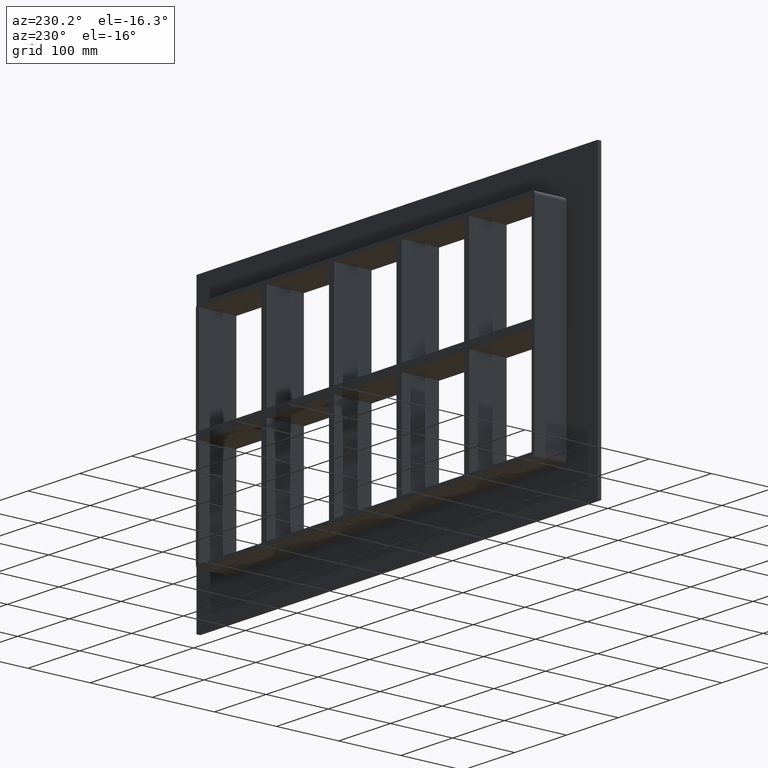
[diagram: clean part render]
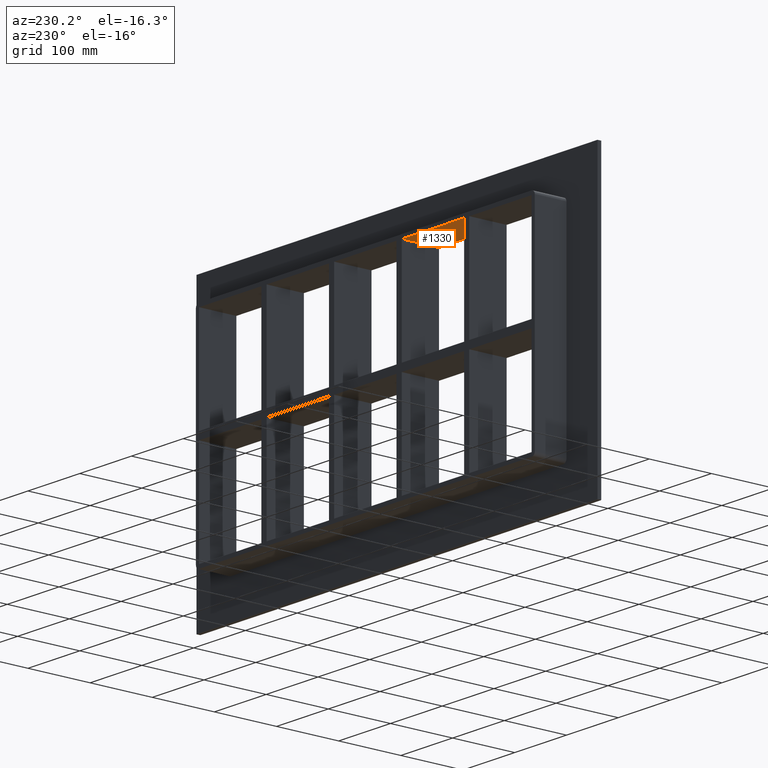
[diagram: same view with one face highlighted and labeled with its STEP entity id]
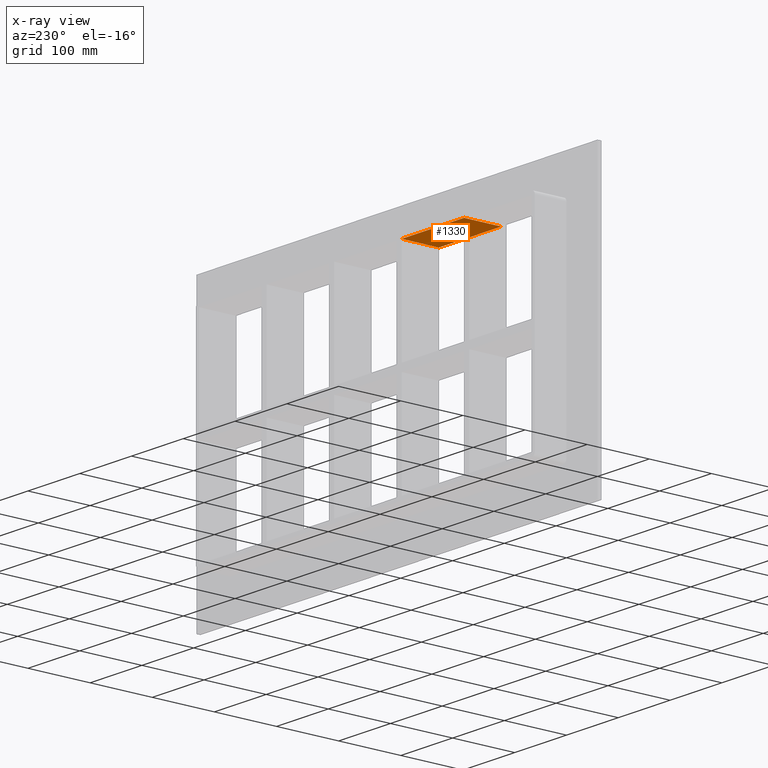
[diagram: x-ray of the same camera — body ghosted, the highlighted face saturated]
A machine part, auxiliary view. The second image highlights one B-rep face of the part: STEP entity #1330.
The next image is the same camera in x-ray: the body ghosted, the highlighted face saturated — about 0% of this face is hidden behind the body in this view.
In plain terms, the highlighted planar face has unit normal (0, 0, 1).
Its self-contained STEP definition (entity closure, byte-faithful):
#403=CARTESIAN_POINT('',(-70.250000000001364,-3.0,165.5));
#404=VERTEX_POINT('',#403);
#411=CARTESIAN_POINT('',(-70.250000000001364,57.0,165.5));
#412=VERTEX_POINT('',#411);
#413=CARTESIAN_POINT('',(-70.250000000001393,57.000000000000007,165.5));
#414=DIRECTION('',(0.0,-1.0,0.0));
#415=VECTOR('',#414,60.000000000000007);
#416=LINE('',#413,#415);
#417=EDGE_CURVE('',#412,#404,#416,.T.);
#809=CARTESIAN_POINT('',(-190.75000000000728,-3.0,165.5));
#810=VERTEX_POINT('',#809);
#817=CARTESIAN_POINT('',(-190.75000000000728,-3.0,165.5));
#818=DIRECTION('',(1.0,0.0,0.0));
#819=VECTOR('',#818,120.50000000000591);
#820=LINE('',#817,#819);
#821=EDGE_CURVE('',#810,#404,#820,.T.);
#1243=CARTESIAN_POINT('',(-190.75000000000728,57.0,165.5));
#1244=VERTEX_POINT('',#1243);
#1245=CARTESIAN_POINT('',(-70.250000000001364,57.0,165.5));
#1246=DIRECTION('',(-1.0,0.0,0.0));
#1247=VECTOR('',#1246,120.50000000000591);
#1248=LINE('',#1245,#1247);
#1249=EDGE_CURVE('',#412,#1244,#1248,.T.);
#1314=CARTESIAN_POINT('',(-321.25,0.0,165.5));
#1315=DIRECTION('',(0.0,0.0,1.0));
#1316=DIRECTION('',(1.0,0.0,0.0));
#1317=AXIS2_PLACEMENT_3D('',#1314,#1315,#1316);
#1318=PLANE('',#1317);
#1319=ORIENTED_EDGE('',*,*,#417,.T.);
#1320=ORIENTED_EDGE('',*,*,#821,.F.);
#1321=CARTESIAN_POINT('',(-190.75000000000728,-3.0,165.5));
#1322=DIRECTION('',(0.0,1.0,0.0));
#1323=VECTOR('',#1322,60.000000000000007);
#1324=LINE('',#1321,#1323);
#1325=EDGE_CURVE('',#810,#1244,#1324,.T.);
#1326=ORIENTED_EDGE('',*,*,#1325,.T.);
#1327=ORIENTED_EDGE('',*,*,#1249,.F.);
#1328=EDGE_LOOP('',(#1319,#1320,#1326,#1327));
#1329=FACE_OUTER_BOUND('',#1328,.T.);
#1330=ADVANCED_FACE('',(#1329),#1318,.F.);